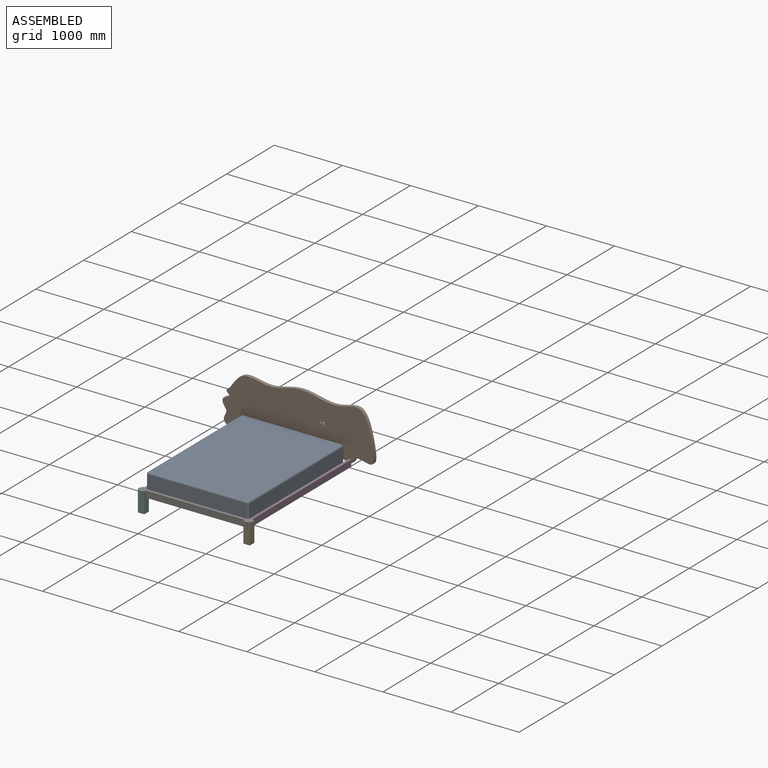
[diagram: assembled view]
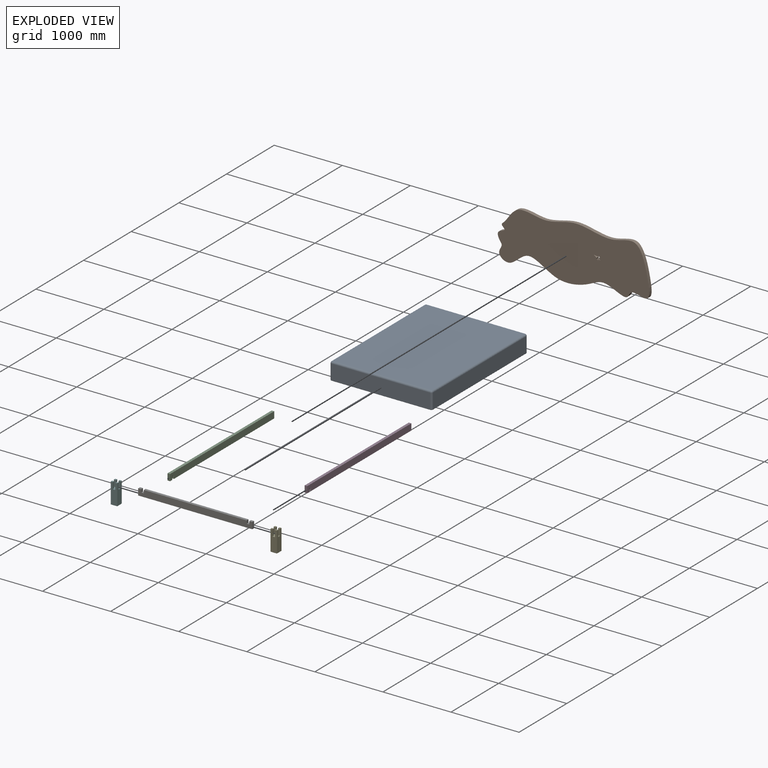
[diagram: exploded view]
GUIDED TOUR — MATED ASSEMBLY (Onshape document d3a2bd3ed422efab6a99ffbd, AutoMate assembly d3a2bd3ed422efab6a99ffbd_976729782380e0793d2598ed_4038372d9a6d7a887ae16372_default)

This assembly has 7 components, labeled P0..P6 below (a component is one placed occurrence of a part; the same part can appear more than once), held together by 14 mates. A mate is a constraint between two components; its type names the relative motion it leaves free:
  PLANAR — leaves sliding in the plane through the listed point (normal = the listed direction) and rotation about that normal free.
Axis/direction vectors are unit vectors and 'through' points are millimeter coordinates, both in the assembly's world frame.

MATES
  1. PLANAR "Planar 3": P4 <-> P6, direction (0.000, 0.000, 1.000) through (1597.02, 47.62, 209.55) mm
  2. PLANAR "Planar 6": P6 <-> P3, direction (0.000, -1.000, 0.000) through (822.33, 28.57, 256.62) mm
  3. PLANAR "Planar 2": P5 <-> P6, direction (0.000, 0.000, 1.000) through (47.62, 47.62, 209.55) mm
  4. PLANAR "Planar 10": P5 <-> P2, direction (1.000, 0.000, 0.000) through (28.57, 14.29, 257.18) mm
  5. PLANAR "Planar 14": P1 <-> P3, direction (0.000, -1.000, 0.000) through (858.16, 2168.52, 634.57) mm
  6. PLANAR "Planar 1": P6 <-> P5, direction (0.000, 1.000, 0.000) through (822.33, 66.67, 256.62) mm
  7. PLANAR "Planar 9": P6 <-> P2, direction (0.000, -1.000, 0.000) through (822.33, 28.57, 256.62) mm
  8. PLANAR "Planar 11": P3 <-> P0, direction (-1.000, 0.000, 0.000) through (1577.97, 1085.98, 257.38) mm
  9. PLANAR "Planar 5": P6 <-> P3, direction (0.000, 0.000, 1.000) through (1597.03, 47.62, 260.35) mm
  10. PLANAR "Planar 4": P6 <-> P4, direction (0.000, 1.000, 0.000) through (822.33, 66.67, 256.62) mm
  11. PLANAR "Planar 7": P4 <-> P3, direction (1.000, 0.000, 0.000) through (1577.97, 14.29, 257.18) mm
  12. PLANAR "Planar 12": P2 <-> P0, direction (1.000, 0.000, 0.000) through (66.67, 1085.98, 257.38) mm
  13. PLANAR "Planar 8": P6 <-> P2, direction (0.000, 0.000, 1.000) through (47.63, 47.62, 260.35) mm
  14. PLANAR "Planar 13": P0 <-> P6, direction (0.000, -1.000, 0.000) through (822.32, 73.02, 391.44) mm

ASSEMBLY ORDER
  1. P6 — the base component [order heuristic]
  2. P2 — core [order heuristic]
  3. P3 — core [order heuristic]
  4. P4 — core [order heuristic]
  5. P5 — core [order heuristic]
  6. P0 [order verified]
  7. P1 [order verified]
(P0 verified with a relaxed clearance tolerance: the source model stores slight part interference there.)
Order-tag legend:
  [order verified] — this step's position reverses a verified removal order: the component was checked to insert without passing through the ones already placed.
  [order heuristic] — the first 5 components form the assembly's core: parts whose collision-free extraction could not be verified, listed in mate-graph order.

Of the 7 components, 4 carry the full construction recipe — the FeatureScript program that regenerates the part's solid from scratch; the rest are supplied as boundary geometry only.
Each toured component is shown spotlighted twice — in the assembled view, then in the exploded view, where a leader line traces a displaced component back to its assembled socket (saturated green if recipe-attached, orange if geometry-only; every other component desaturated gray) — followed by its recipe or geometry summary and the mates that hold it.
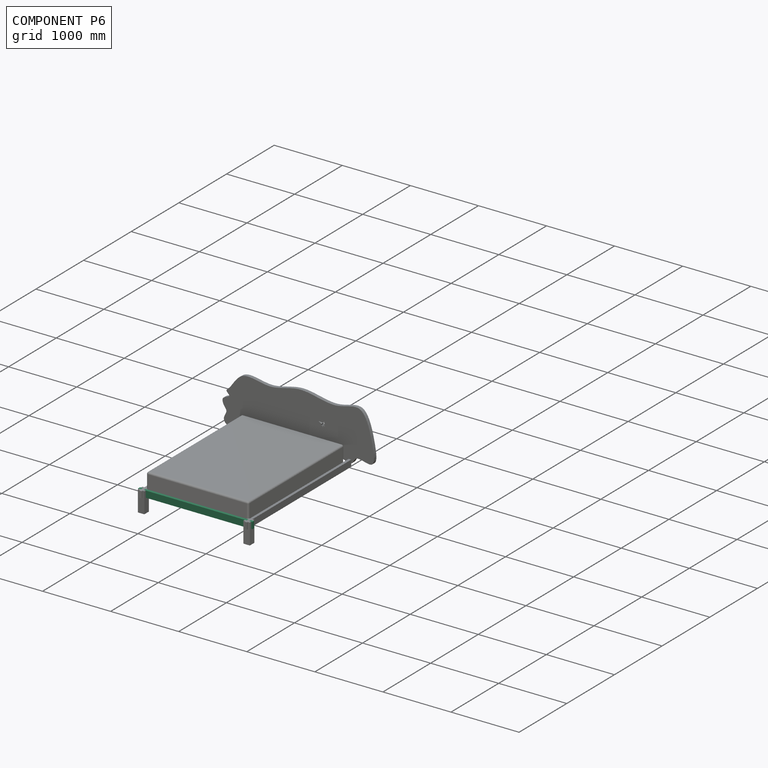
[diagram: component P6 — assembled]
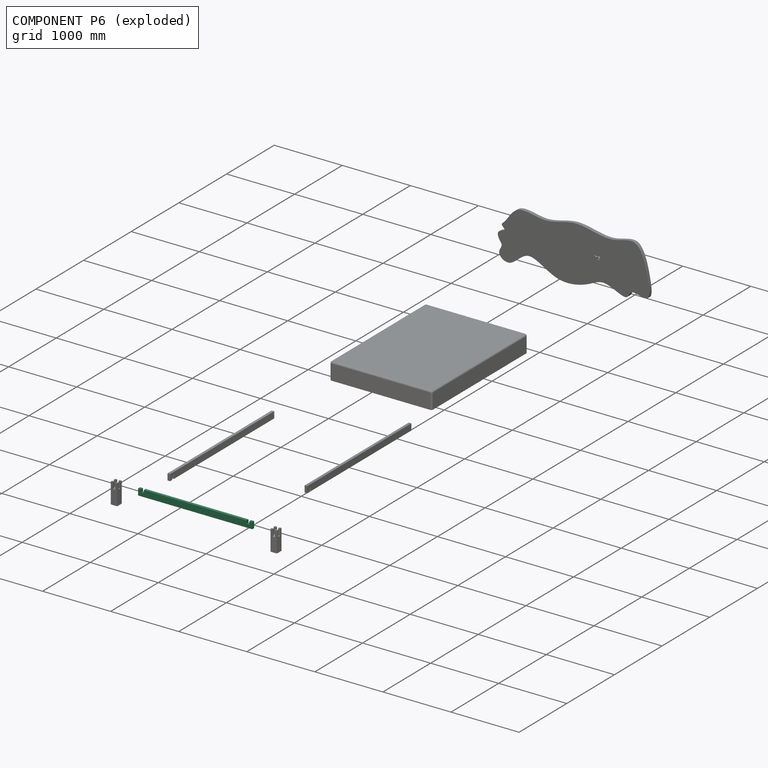
[diagram: component P6 — exploded]
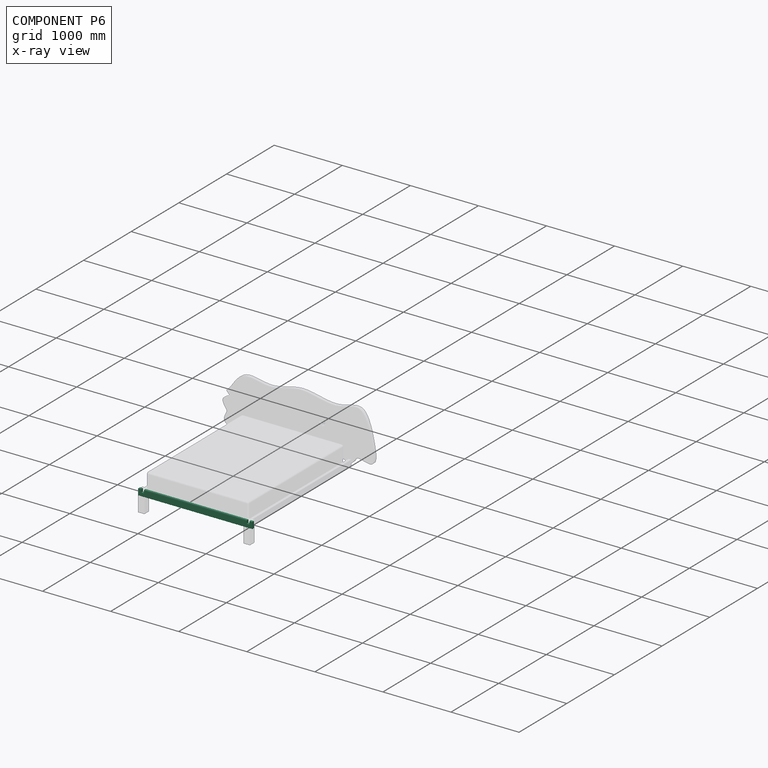
[diagram: component P6 — x-ray view]
COMPONENT P6 — recipe-attached (CADFS 00242358, mesh-verified: the recipe's output STEP matches this component's geometry to below the mesh-comparison resolution (tessellation chordal tolerance ~2.52 mm)).
Held by: PLANAR mate "Planar 3" to P4; PLANAR mate "Planar 6" to P3; PLANAR mate "Planar 2" to P5; PLANAR mate "Planar 1" to P5; PLANAR mate "Planar 9" to P2; PLANAR mate "Planar 5" to P3; PLANAR mate "Planar 4" to P4; PLANAR mate "Planar 8" to P2; PLANAR mate "Planar 13" to P0.
Construction recipe (FeatureScript — the CAD program that rebuilds this solid; sketch coordinates are in the units given by the * unit suffixes, e.g. mm):

FeatureScript 1511;
import(path : "onshape/std/geometry.fs", version : "1511.0");
import(path : "onshape/std/common.fs", version : "1511.0");
const mm = millimeter;
const VERTEX = EntityType.VERTEX;
const EDGE = EntityType.EDGE;
const FACE = EntityType.FACE;
const BODY = EntityType.BODY;
function v(x, y){return vector(x, y);}
function OD(order){return orderDisambiguation(order);}
function OSD(set){return originalSetDisambiguation(set);}
function TD(topology){return topologyDisambiguation(topology);}
function TDD(query){return trueDependencyDisambiguation(query);}
function sQuery(a, b, c) {return sketchEntityQuery(a, b, c);}

annotation { "Feature Type Name" : "Feature", "Feature Type Description" : "" }
export const myFeature = defineFeature(function(context is Context, id is Id, definition is map)
    precondition{}
    {
        {
            var Q0;
            Q0=qCreatedBy(makeId("Top.planeOp"),FACE);
            var sketch = newSketch(context, id + "F0", { "sketchPlane" : qUnion([Q0])});
            skLineSegment(sketch, "E0.bottom", {"start": v(0, 0) * mm, "end": v(1676.4, 0) * mm});
            skLineSegment(sketch, "E0.top", {"start": v(0, 95.25) * mm, "end": v(1676.4, 95.25) * mm});
            skLineSegment(sketch, "E0.left", {"start": v(0, 0) * mm, "end": v(0, 95.25) * mm});
            skLineSegment(sketch, "E0.right", {"start": v(1676.4, 0) * mm, "end": v(1676.4, 95.25) * mm});
            skLineSegment(sketch, "E1.bottom", {"start": v(1631.95, 95.25) * mm, "end": v(1593.85, 95.25) * mm});
            skLineSegment(sketch, "E1.top", {"start": v(1631.95, 50.8) * mm, "end": v(1593.85, 50.8) * mm});
            skLineSegment(sketch, "E1.left", {"start": v(1593.85, 95.25) * mm, "end": v(1593.85, 50.8) * mm});
            skLineSegment(sketch, "E1.right", {"start": v(1631.95, 95.25) * mm, "end": v(1631.95, 50.8) * mm});
            skLineSegment(sketch, "E2.bottom", {"start": v(82.55, 95.25) * mm, "end": v(44.45, 95.25) * mm});
            skLineSegment(sketch, "E2.top", {"start": v(82.55, 50.8) * mm, "end": v(44.45, 50.8) * mm});
            skLineSegment(sketch, "E2.left", {"start": v(82.55, 95.25) * mm, "end": v(82.55, 50.8) * mm});
            skLineSegment(sketch, "E2.right", {"start": v(44.45, 95.25) * mm, "end": v(44.45, 50.8) * mm});
            skLineSegment(sketch, "E3", {"start": v(44.45, 95.25) * mm, "end": v(0, 95.25) * mm, "construction": true});
            skLineSegment(sketch, "E4", {"start": v(82.55, 95.25) * mm, "end": v(1593.85, 95.25) * mm, "construction": true});
            skLineSegment(sketch, "E5", {"start": v(1631.95, 95.25) * mm, "end": v(1676.4, 95.25) * mm, "construction": true});
            skSolve(sketch);
        }
        {
            var Q0;
            Q0=makeQuery(id+"F0.imprint","IMPRINT",FACE,{"disambiguationData":[TD([[makeQuery(id+"F0.imprint","IMPRINT",EDGE,{"derivedFrom":sQuery(id+"F0.wireOp",EDGE,"E0.bottom")}),1.0]])]});
            extrude(context, id + "F1", {"entities" : qUnion([Q0]), "depth" : 38.1 * mm});
        }
    });
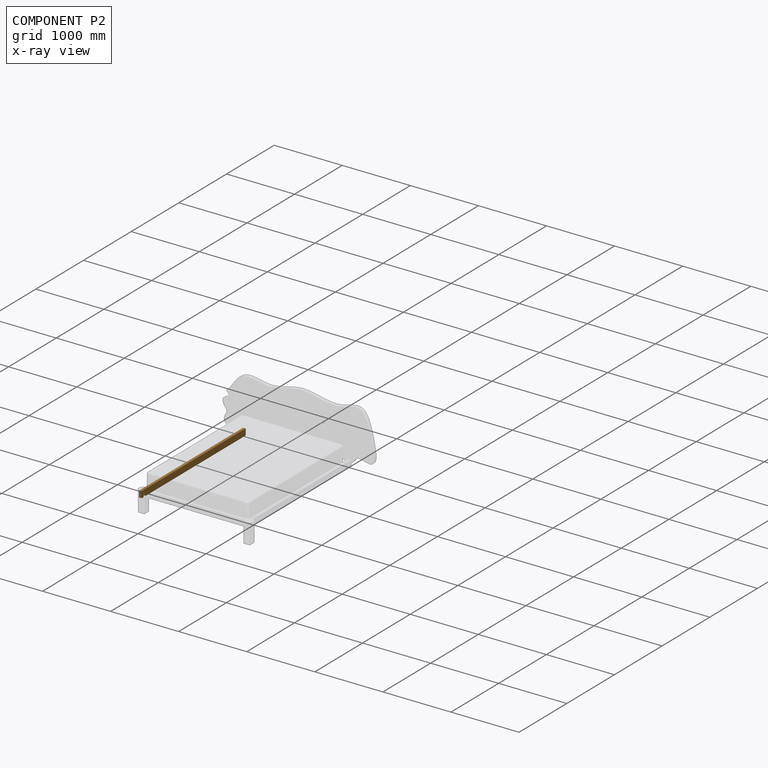
[diagram: component P2 — x-ray view]
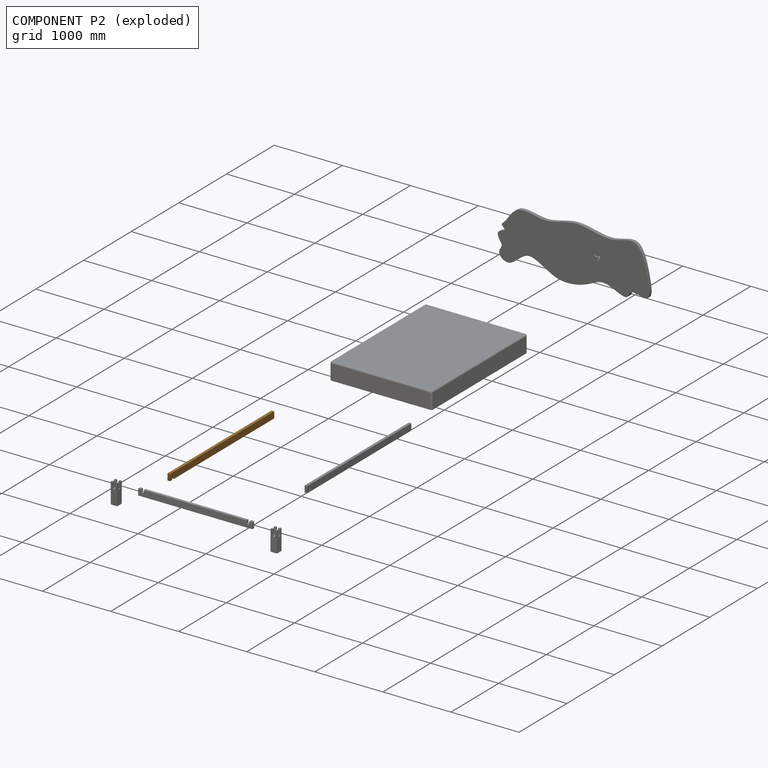
[diagram: component P2 — exploded]
COMPONENT P2 — geometry summary (no construction recipe available for this part):
  bounding box: 2184.4 x 95.3 x 38.1 mm
  B-rep topology: 1 solid, 10 faces, 48 edges
  volume: 7853500 mm^3 (99% of its bounding box)
  symmetry: mirror-symmetric across its x mid-plane
Held by: PLANAR mate "Planar 10" to P5; PLANAR mate "Planar 9" to P6; PLANAR mate "Planar 12" to P0; PLANAR mate "Planar 8" to P6.
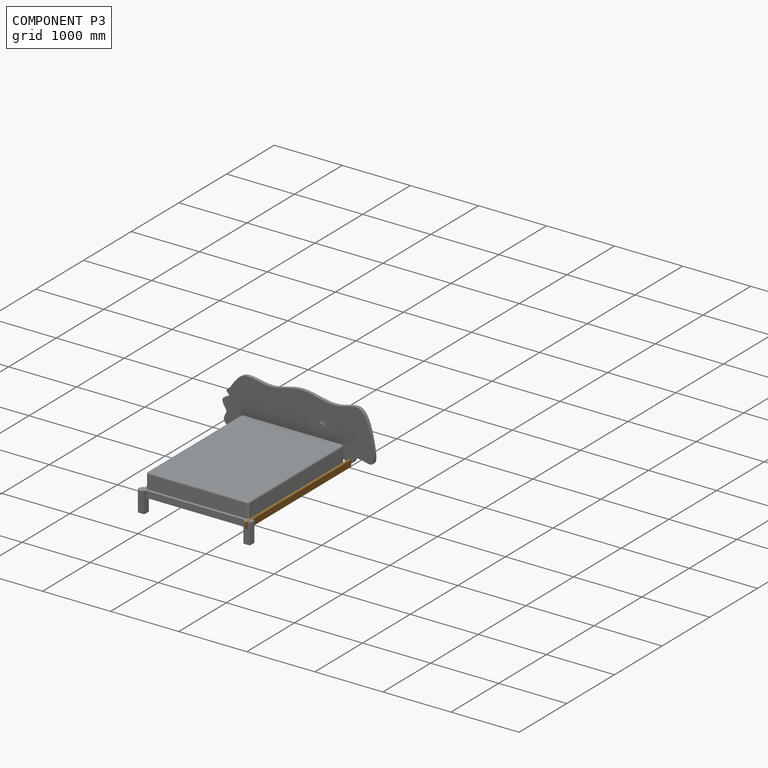
[diagram: component P3 — assembled]
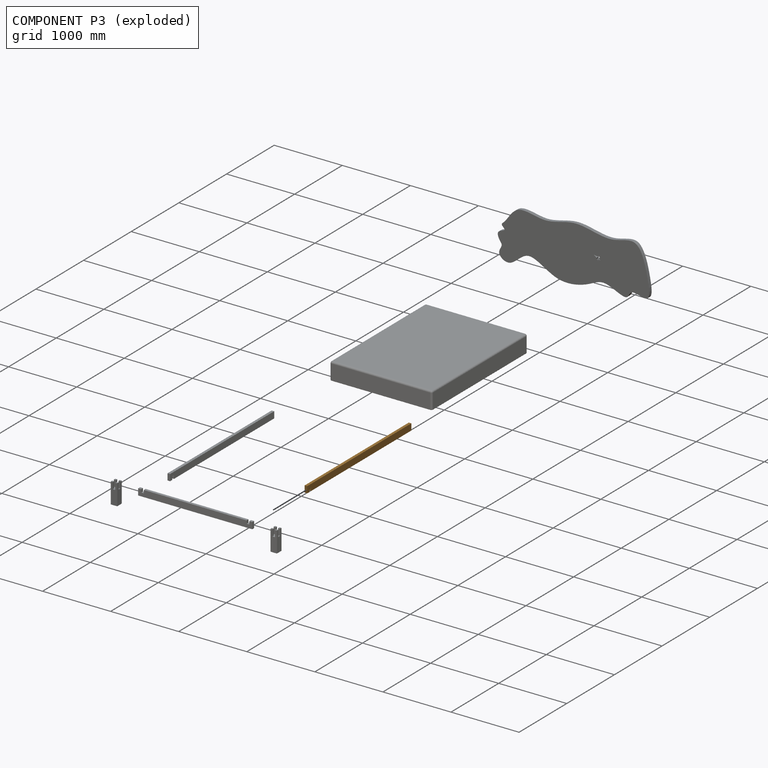
[diagram: component P3 — exploded]
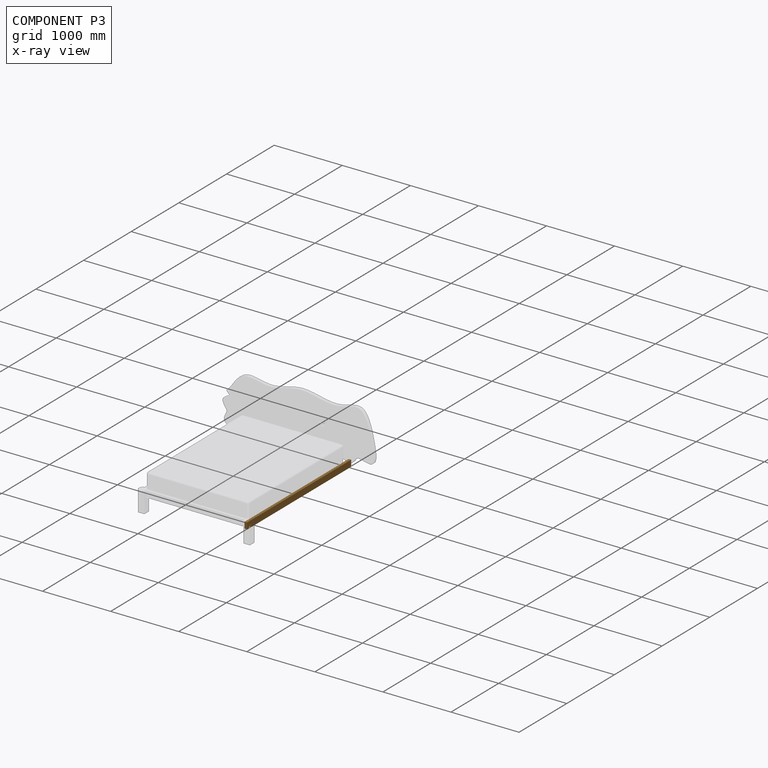
[diagram: component P3 — x-ray view]
COMPONENT P3 — geometry summary (no construction recipe available for this part):
  bounding box: 2184.4 x 95.3 x 38.1 mm
  B-rep topology: 1 solid, 10 faces, 48 edges
  volume: 7853500 mm^3 (99% of its bounding box)
  symmetry: mirror-symmetric across its x mid-plane
Held by: PLANAR mate "Planar 6" to P6; PLANAR mate "Planar 14" to P1; PLANAR mate "Planar 11" to P0; PLANAR mate "Planar 5" to P6; PLANAR mate "Planar 7" to P4.
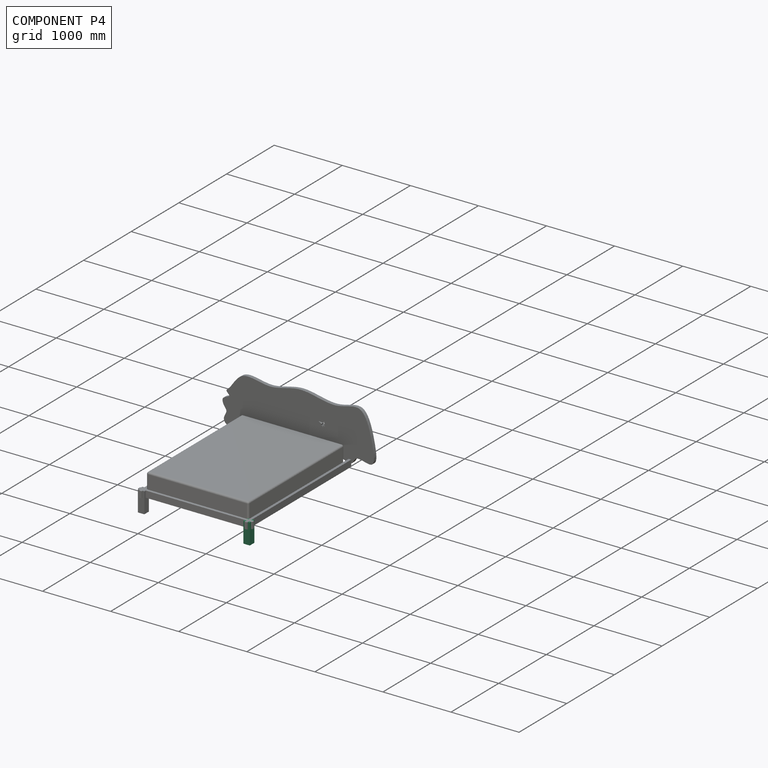
[diagram: component P4 — assembled]
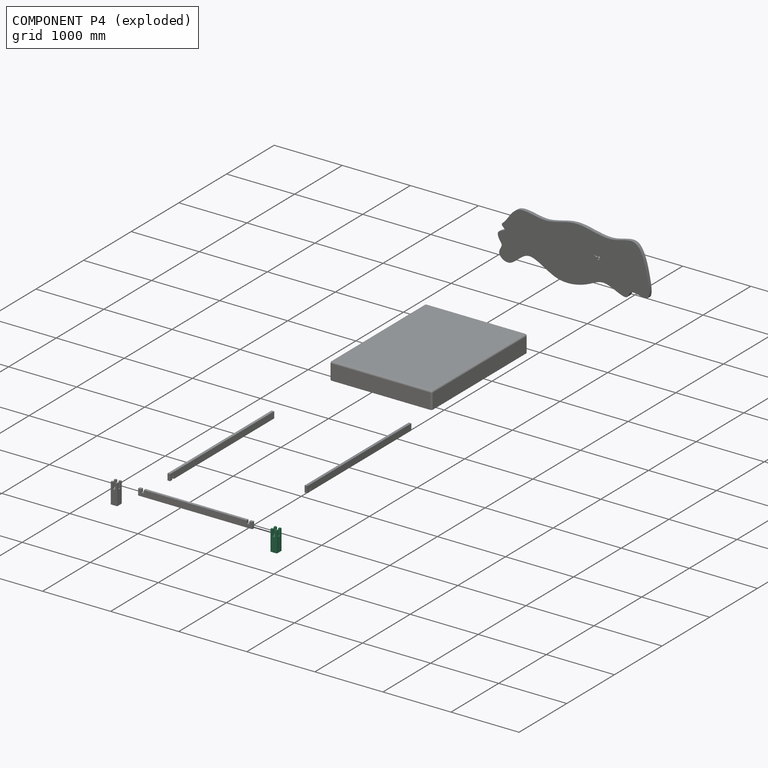
[diagram: component P4 — exploded]
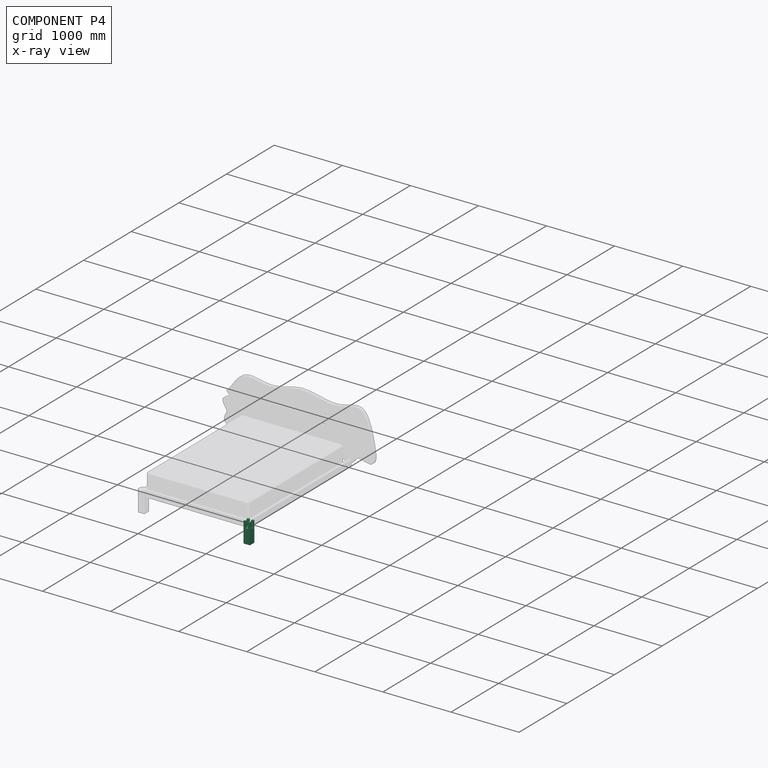
[diagram: component P4 — x-ray view]
COMPONENT P4 — recipe-attached (CADFS 00242359, mesh-verified: the recipe's output STEP matches this component's geometry to below the mesh-comparison resolution (tessellation chordal tolerance ~0.5 mm)).
Held by: PLANAR mate "Planar 3" to P6; PLANAR mate "Planar 4" to P6; PLANAR mate "Planar 7" to P3.
Construction recipe (FeatureScript — the CAD program that rebuilds this solid; sketch coordinates are in the units given by the * unit suffixes, e.g. mm):

FeatureScript 1511;
import(path : "onshape/std/geometry.fs", version : "1511.0");
import(path : "onshape/std/common.fs", version : "1511.0");
const mm = millimeter;
const VERTEX = EntityType.VERTEX;
const EDGE = EntityType.EDGE;
const FACE = EntityType.FACE;
const BODY = EntityType.BODY;
function v(x, y){return vector(x, y);}
function OD(order){return orderDisambiguation(order);}
function OSD(set){return originalSetDisambiguation(set);}
function TD(topology){return topologyDisambiguation(topology);}
function TDD(query){return trueDependencyDisambiguation(query);}
function sQuery(a, b, c) {return sketchEntityQuery(a, b, c);}

annotation { "Feature Type Name" : "Feature", "Feature Type Description" : "" }
export const myFeature = defineFeature(function(context is Context, id is Id, definition is map)
    precondition{}
    {
        {
            var Q0;
            Q0=qCreatedBy(makeId("Top.planeOp"),FACE);
            var sketch = newSketch(context, id + "F0", { "sketchPlane" : qUnion([Q0])});
            skLineSegment(sketch, "E0.bottom", {"start": v(0, 0) * mm, "end": v(95.25, 0) * mm});
            skLineSegment(sketch, "E0.top", {"start": v(0, 95.25) * mm, "end": v(95.25, 95.25) * mm});
            skLineSegment(sketch, "E0.left", {"start": v(0, 0) * mm, "end": v(0, 95.25) * mm});
            skLineSegment(sketch, "E0.right", {"start": v(95.25, 0) * mm, "end": v(95.25, 95.25) * mm});
            skSolve(sketch);
        }
        {
            var Q0;
            Q0=qCreatedBy(makeId("Top.planeOp"),FACE);
            var sketch = newSketch(context, id + "F1", { "sketchPlane" : qUnion([Q0])});
            skLineSegment(sketch, "E1.bottom", {"start": v(28.57, 95.25) * mm, "end": v(66.67, 95.25) * mm});
            skLineSegment(sketch, "E1.top", {"start": v(28.57, 0) * mm, "end": v(66.67, 0) * mm});
            skLineSegment(sketch, "E1.left", {"start": v(28.57, 95.25) * mm, "end": v(28.57, 0) * mm});
            skLineSegment(sketch, "E1.right", {"start": v(66.67, 95.25) * mm, "end": v(66.67, 0) * mm});
            skLineSegment(sketch, "E2.bottom", {"start": v(0, 66.68) * mm, "end": v(95.25, 66.68) * mm});
            skLineSegment(sketch, "E2.top", {"start": v(0, 28.57) * mm, "end": v(95.25, 28.57) * mm});
            skLineSegment(sketch, "E2.left", {"start": v(0, 66.68) * mm, "end": v(0, 28.57) * mm});
            skLineSegment(sketch, "E2.right", {"start": v(95.25, 66.68) * mm, "end": v(95.25, 28.58) * mm});
            skPoint(sketch, "E3", {"position": v(47.62, 95.25) * mm});
            skPoint(sketch, "E4", {"position": v(95.25, 47.63) * mm});
            skSolve(sketch);
        }
        {
            var Q0;
            Q0=makeQuery(id+"F0.imprint","IMPRINT",FACE,{"disambiguationData":[TD([[makeQuery(id+"F0.imprint","IMPRINT",EDGE,{"derivedFrom":sQuery(id+"F0.wireOp",EDGE,"E0.bottom")}),1.0]])]});
            extrude(context, id + "F2", {"entities" : qUnion([Q0]), "depth" : 304.8 * mm});
        }
        {
            var Q0;
            {var subQ5=sQuery(id+"F1.wireOp",EDGE,"E2.left");Q0=makeQuery(id+"F1.imprint","IMPRINT",FACE,{"disambiguationData":[TD([[makeQuery(id+"F1.imprint","IMPRINT",EDGE,{"derivedFrom":subQ5}),1.0]])]});}
            var Q1;
            {var subQ0=sQuery(id+"F1.wireOp",EDGE,"E2.bottom");var subQ1=sQuery(id+"F1.wireOp",EDGE,"E1.left");var subQ2=makeQuery(id+"F1.imprint","INTERSECT",VERTEX,{"derivedFrom":[subQ1,subQ0]});Q1=makeQuery(id+"F1.imprint","IMPRINT",FACE,{"disambiguationData":[TD([[makeQuery(id+"F1.imprint","IMPRINT",EDGE,{"disambiguationData":[TD([[subQ2,-1.0]])],"derivedFrom":subQ1}),1.0]])]});}
            var Q2;
            {var subQ5=sQuery(id+"F1.wireOp",EDGE,"E2.right");Q2=makeQuery(id+"F1.imprint","IMPRINT",FACE,{"disambiguationData":[TD([[makeQuery(id+"F1.imprint","IMPRINT",EDGE,{"derivedFrom":subQ5}),-1.0]])]});}
            var Q3;
            {var subQ0=sQuery(id+"F1.wireOp",EDGE,"E1.bottom");Q3=makeQuery(id+"F1.imprint","IMPRINT",FACE,{"disambiguationData":[TD([[makeQuery(id+"F1.imprint","IMPRINT",EDGE,{"derivedFrom":subQ0}),-1.0]])]});}
            var Q4;
            {var subQ0=sQuery(id+"F1.wireOp",EDGE,"E1.top");Q4=makeQuery(id+"F1.imprint","IMPRINT",FACE,{"disambiguationData":[TD([[makeQuery(id+"F1.imprint","IMPRINT",EDGE,{"derivedFrom":subQ0}),1.0]])]});}
            extrude(context, id + "F3", {"entities" : qUnion([Q0, Q1, Q2, Q3, Q4]), "operationType" : NewBodyOperationType.REMOVE, "depth" : 304.8 * mm, "hasSecondDirection" : true, "secondDirectionOppositeDirection" : false, "secondDirectionDepth" : 209.55 * mm});
        }
    });
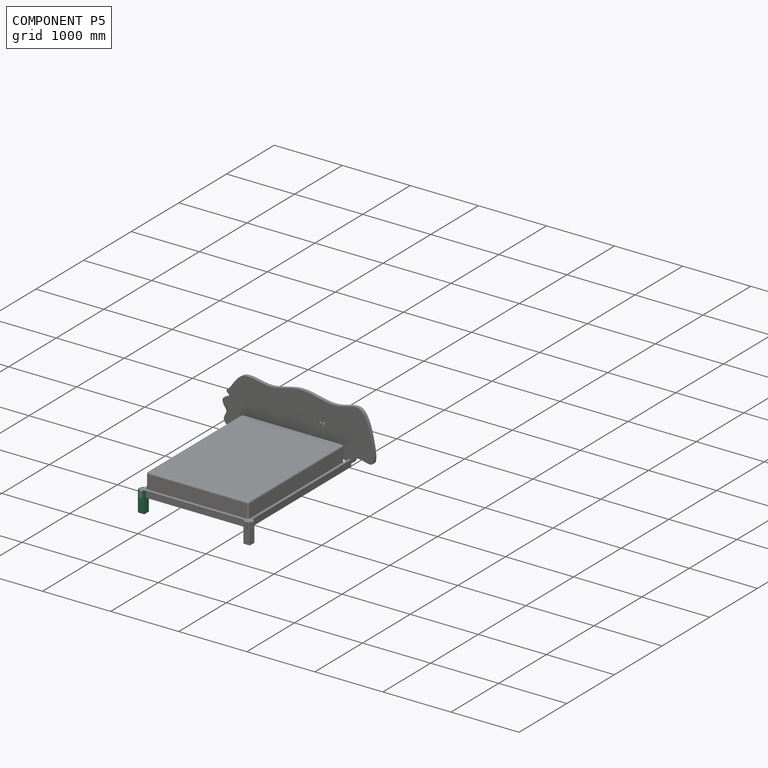
[diagram: component P5 — assembled]
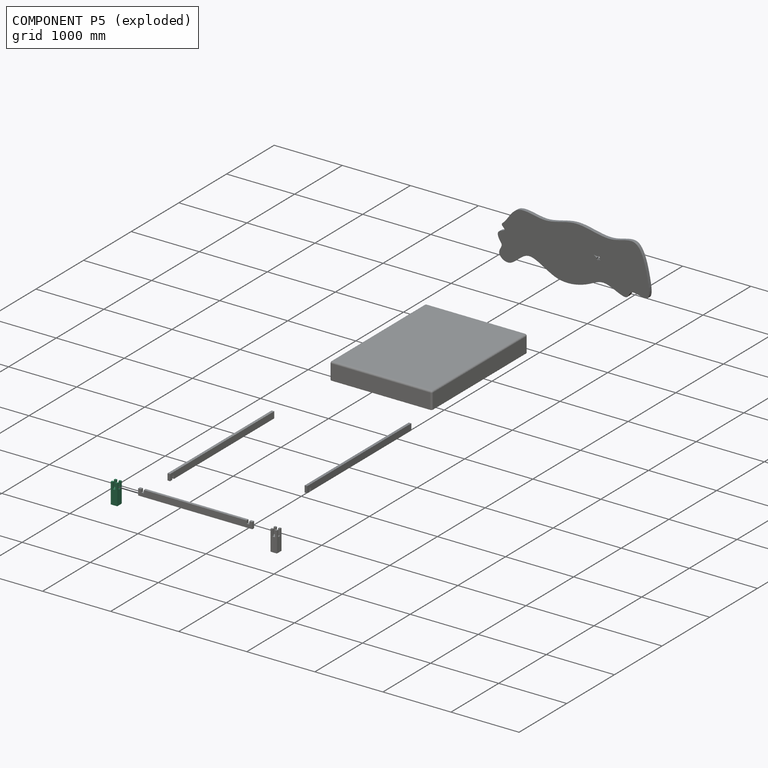
[diagram: component P5 — exploded]
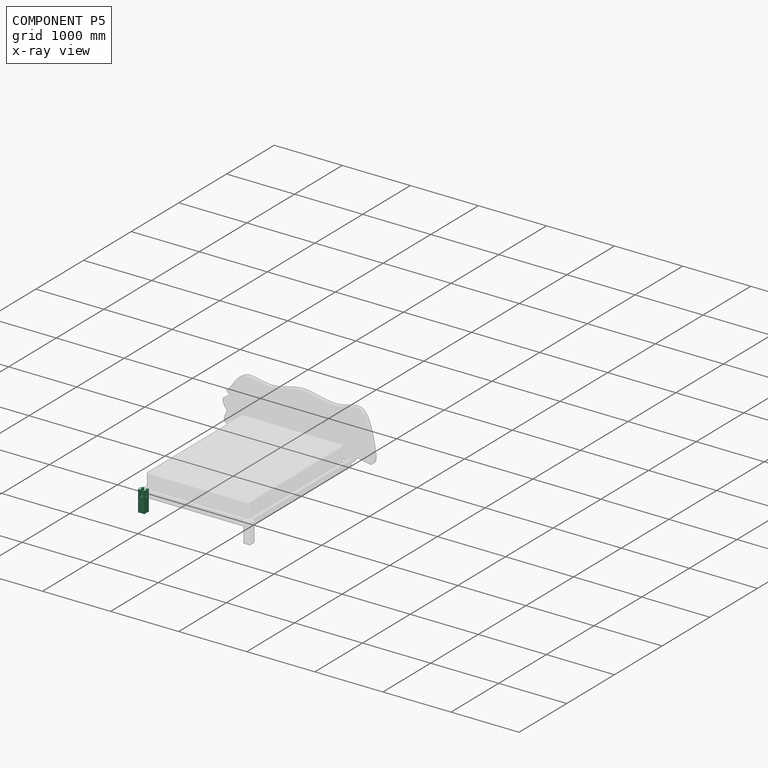
[diagram: component P5 — x-ray view]
COMPONENT P5 — same part as P4 (CADFS 00242359); its construction recipe is shown at P4.
Held by: PLANAR mate "Planar 2" to P6; PLANAR mate "Planar 10" to P2; PLANAR mate "Planar 1" to P6.
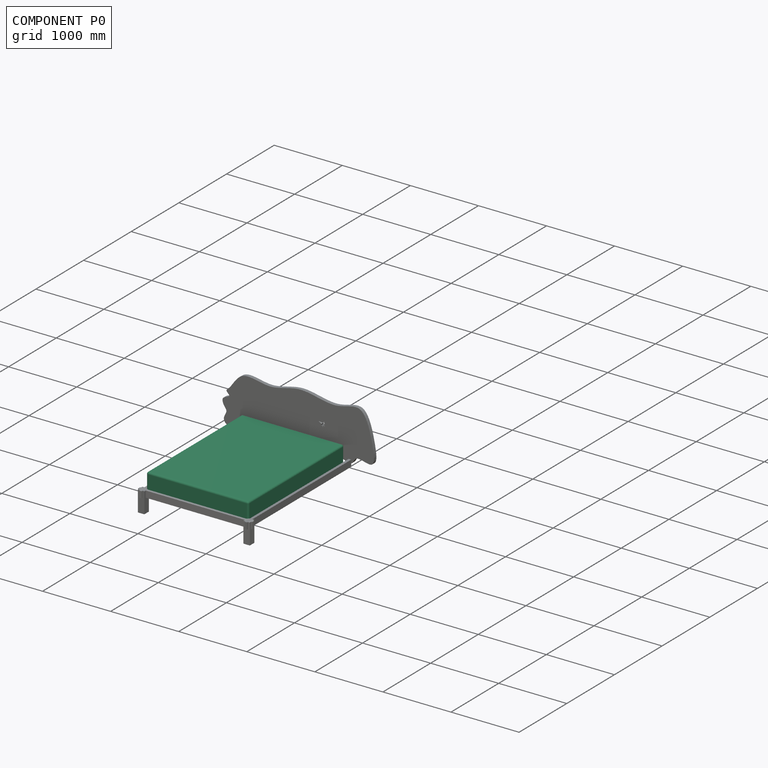
[diagram: component P0 — assembled]
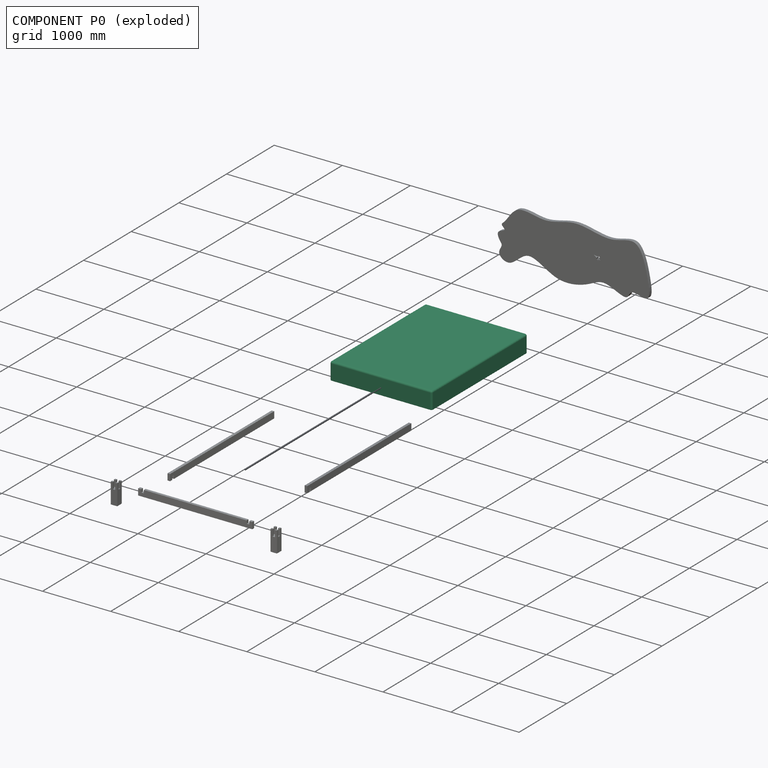
[diagram: component P0 — exploded]
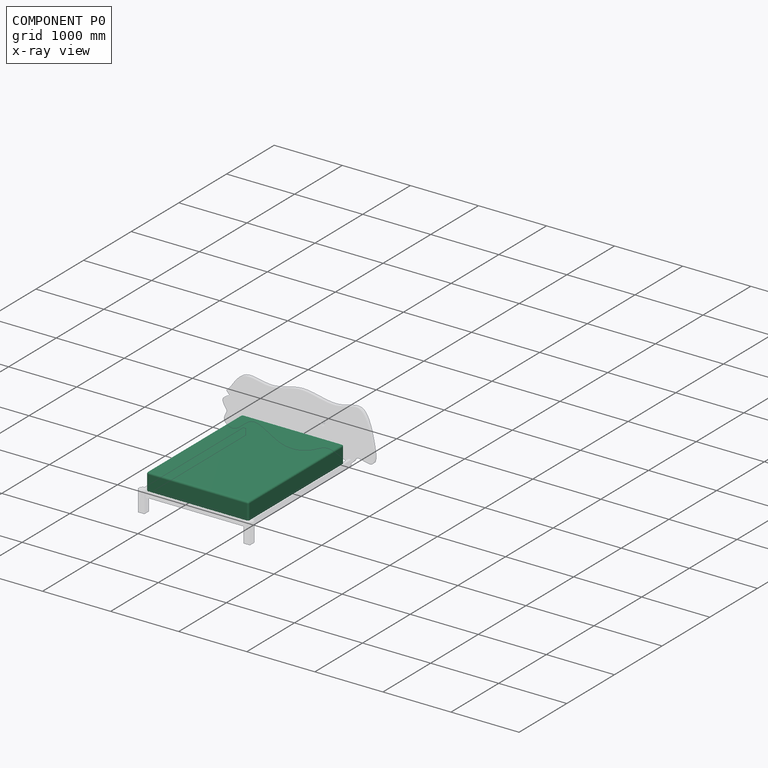
[diagram: component P0 — x-ray view]
COMPONENT P0 — recipe-attached (CADFS 00242356, mesh-verified: the recipe's output STEP matches this component's geometry to below the mesh-comparison resolution (tessellation chordal tolerance ~3.78 mm)).
Held by: PLANAR mate "Planar 11" to P3; PLANAR mate "Planar 12" to P2; PLANAR mate "Planar 13" to P6.
Construction recipe (FeatureScript — the CAD program that rebuilds this solid; sketch coordinates are in the units given by the * unit suffixes, e.g. mm):

FeatureScript 1511;
import(path : "onshape/std/geometry.fs", version : "1511.0");
import(path : "onshape/std/common.fs", version : "1511.0");
const mm = millimeter;
const VERTEX = EntityType.VERTEX;
const EDGE = EntityType.EDGE;
const FACE = EntityType.FACE;
const BODY = EntityType.BODY;
function v(x, y){return vector(x, y);}
function OD(order){return orderDisambiguation(order);}
function OSD(set){return originalSetDisambiguation(set);}
function TD(topology){return topologyDisambiguation(topology);}
function TDD(query){return trueDependencyDisambiguation(query);}
function sQuery(a, b, c) {return sketchEntityQuery(a, b, c);}

annotation { "Feature Type Name" : "Feature", "Feature Type Description" : "" }
export const myFeature = defineFeature(function(context is Context, id is Id, definition is map)
    precondition{}
    {
        {
            var Q0;
            Q0=qCreatedBy(makeId("Top.planeOp"),FACE);
            var sketch = newSketch(context, id + "F0", { "sketchPlane" : qUnion([Q0])});
            skLineSegment(sketch, "E0.bottom", {"start": v(0, 0) * mm, "end": v(1498.6, 0) * mm});
            skLineSegment(sketch, "E0.top", {"start": v(0, 2006.6) * mm, "end": v(1498.6, 2006.6) * mm});
            skLineSegment(sketch, "E0.left", {"start": v(0, 0) * mm, "end": v(0, 2006.6) * mm});
            skLineSegment(sketch, "E0.right", {"start": v(1498.6, 0) * mm, "end": v(1498.6, 2006.6) * mm});
            skSolve(sketch);
        }
        {
            var Q0;
            Q0=makeQuery(id+"F0.imprint","IMPRINT",FACE,{"disambiguationData":[TD([[makeQuery(id+"F0.imprint","IMPRINT",EDGE,{"derivedFrom":sQuery(id+"F0.wireOp",EDGE,"E0.bottom")}),1.0]])]});
            extrude(context, id + "F1", {"entities" : qUnion([Q0]), "depth" : 254 * mm});
        }
        {
            var Q0;
            Q0=makeQuery(id+"F1.opExtrude","CAP_EDGE",EDGE,{"disambiguationData":[OSD([sQuery(id+"F0.wireOp",EDGE,"E0.left")])],"isStart":false});
            var Q1;
            Q1=makeQuery(id+"F1.opExtrude","CAP_EDGE",EDGE,{"disambiguationData":[OSD([sQuery(id+"F0.wireOp",EDGE,"E0.bottom")])],"isStart":false});
            var Q2;
            Q2=makeQuery(id+"F1.opExtrude","CAP_EDGE",EDGE,{"disambiguationData":[OSD([sQuery(id+"F0.wireOp",EDGE,"E0.right")])],"isStart":false});
            var Q3;
            Q3=makeQuery(id+"F1.opExtrude","CAP_EDGE",EDGE,{"disambiguationData":[OSD([sQuery(id+"F0.wireOp",EDGE,"E0.top")])],"isStart":false});
            var Q4;
            Q4=makeQuery(id+"F1.opExtrude","SWEPT_EDGE",EDGE,{"disambiguationData":[OSD([sQuery(id+"F0.wireOp",EDGE,"E0.bottom"),sQuery(id+"F0.wireOp",EDGE,"E0.right")])]});
            var Q5;
            Q5=makeQuery(id+"F1.opExtrude","SWEPT_EDGE",EDGE,{"disambiguationData":[OSD([sQuery(id+"F0.wireOp",EDGE,"E0.bottom"),sQuery(id+"F0.wireOp",EDGE,"E0.left")])]});
            var Q6;
            Q6=makeQuery(id+"F1.opExtrude","SWEPT_EDGE",EDGE,{"disambiguationData":[OSD([sQuery(id+"F0.wireOp",EDGE,"E0.top"),sQuery(id+"F0.wireOp",EDGE,"E0.right")])]});
            var Q7;
            Q7=makeQuery(id+"F1.opExtrude","SWEPT_EDGE",EDGE,{"disambiguationData":[OSD([sQuery(id+"F0.wireOp",EDGE,"E0.top"),sQuery(id+"F0.wireOp",EDGE,"E0.left")])]});
            fillet(context, id + "F2", {"entities" : qUnion([Q0, Q1, Q2, Q3, Q4, Q5, Q6, Q7]), "radius" : 25.4 * mm, "tangentPropagation" : true, "allowEdgeOverflow" : false});
        }
        {
            var Q0;
            Q0=makeQuery(id+"F1.opExtrude","CAP_EDGE",EDGE,{"disambiguationData":[OSD([sQuery(id+"F0.wireOp",EDGE,"E0.right")])],"isStart":true});
            var Q1;
            Q1=makeQuery(id+"F1.opExtrude","CAP_EDGE",EDGE,{"disambiguationData":[OSD([sQuery(id+"F0.wireOp",EDGE,"E0.bottom")])],"isStart":true});
            var Q2;
            Q2=makeQuery(id+"F1.opExtrude","CAP_EDGE",EDGE,{"disambiguationData":[OSD([sQuery(id+"F0.wireOp",EDGE,"E0.left")])],"isStart":true});
            var Q3;
            Q3=makeQuery(id+"F1.opExtrude","CAP_EDGE",EDGE,{"disambiguationData":[OSD([sQuery(id+"F0.wireOp",EDGE,"E0.top")])],"isStart":true});
            fillet(context, id + "F3", {"entities" : qUnion([Q0, Q1, Q2, Q3]), "radius" : 5.08 * mm, "tangentPropagation" : true, "allowEdgeOverflow" : false});
        }
    });
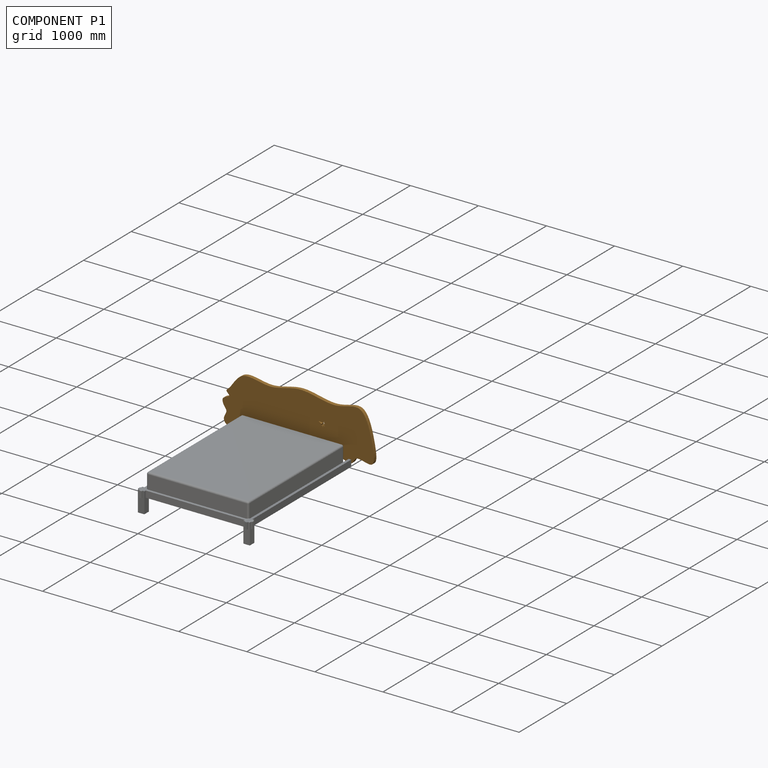
[diagram: component P1 — assembled]
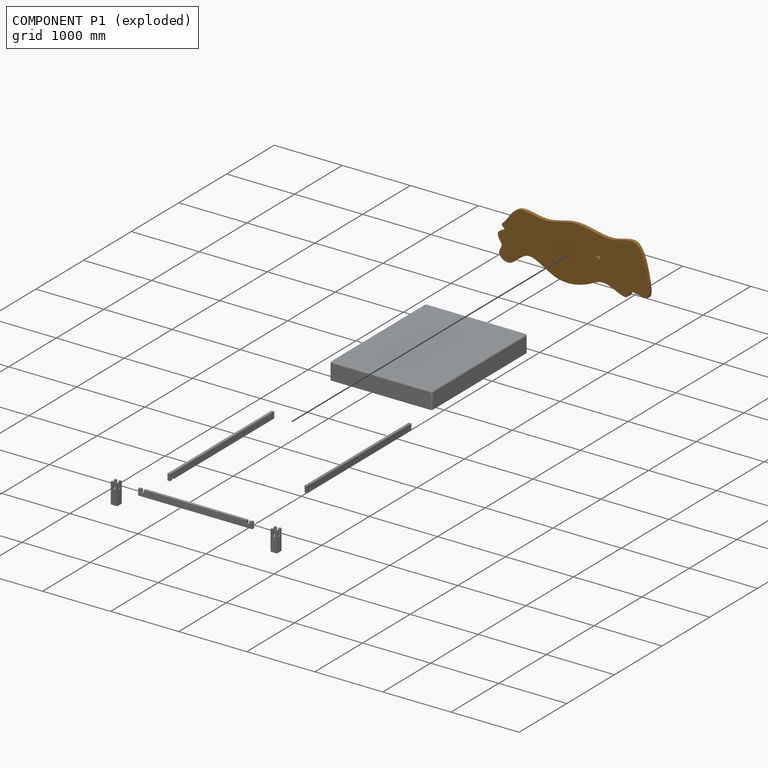
[diagram: component P1 — exploded]
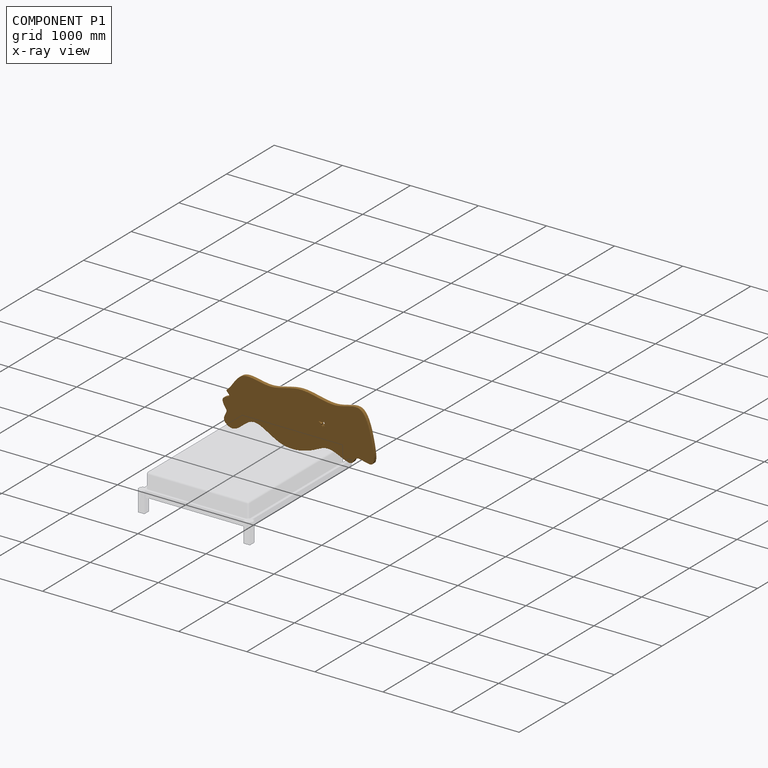
[diagram: component P1 — x-ray view]
COMPONENT P1 — geometry summary (no construction recipe available for this part):
  bounding box: 2256.9 x 853.7 x 50.8 mm
  B-rep topology: 1 solid, 17 faces, 90 edges
  volume: 72790084 mm^3 (74% of its bounding box)
  symmetry: mirror-symmetric across its y mid-plane
Held by: PLANAR mate "Planar 14" to P3.
PROVENANCE & LICENSES
Assembly (occurrences, transforms, mates, per-part STEP geometry): AutoMate dataset, Zenodo record 7776208, CC0.
Construction recipes: CADFS (HuggingFace VladPyatov/CADFS, CC-BY-4.0, layered over the ABC dataset), FeatureScript reconstruction programs keyed by ABC model id.
Join: ABC meta listings map ABC model id -> Onshape documentId; within a shared document, parts are matched by geometric signature (bounding-box dims + volume at 0.1% relative tolerance, exact B-rep face/solid counts).
Verification: 4 of this assembly's 7 components carry a recipe attachment, and every attachment is mesh-verified: the CADFS STEP and the AutoMate member STEP were compared as meshes in their shared local frame (symmetric sampled-point-to-mesh distance); worst across the 4 attachments: below the mesh-comparison resolution (tessellation chordal tolerance ~3.78 mm) on a 2517 mm part.
Renders: orthographic iso camera (az 35 / el 25); the floor grid conveys scale (grid pitch printed in each image; no ruler). In the exploded view each component is displaced by its stored offset vector: the offsets alone carry the explosion direction (mate normal/axis signs are not orientation cues and do not encode it), and separation distances are assigned per mate-chain, not proportionally to assembly-order depth.
